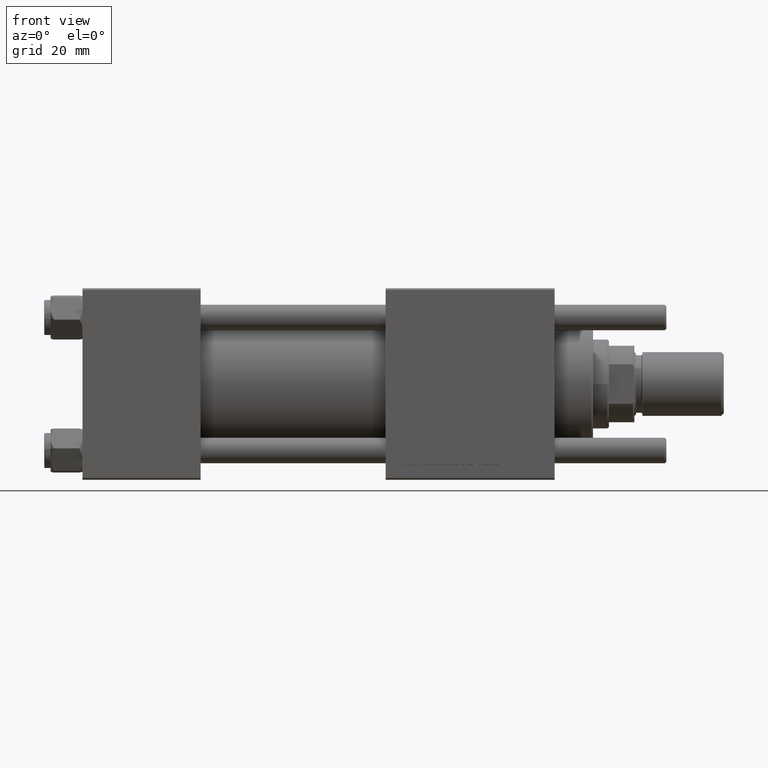
[diagram: clean part render]
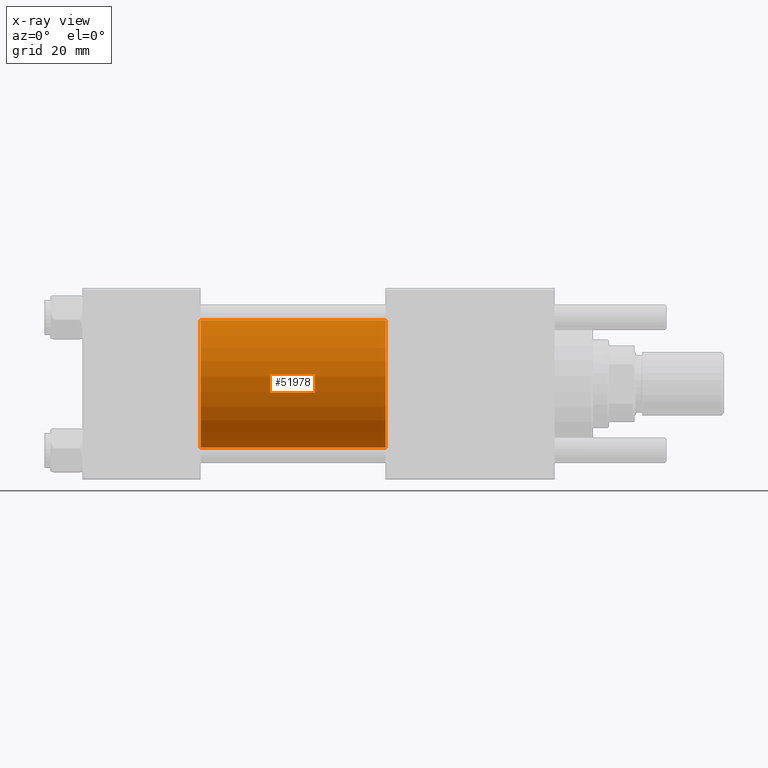
[diagram: x-ray — body ghosted, one internal face saturated and labeled with its STEP entity id]
A machine part, front view, then the same camera in x-ray: the body is ghosted and one INTERNAL B-rep face — a face not visible from any outside direction — is saturated and labeled: STEP entity #51978.
In plain terms, the highlighted cylindrical surface (partial cylindrical patch) has radius 20 mm, axis along (-1, -0, -0).
Its self-contained STEP definition (entity closure, byte-faithful):
#1743 = CARTESIAN_POINT ( 'NONE',  ( 95.00000000000000000, -1.527916156705046464E-16, -20.00000000000000000 ) ) ;
#3789 = DIRECTION ( 'NONE',  ( -1.000000000000000000, -0.000000000000000000, -0.000000000000000000 ) ) ;
#4575 = CARTESIAN_POINT ( 'NONE',  ( 95.00000000000000000, -2.602085213965210642E-15, 20.00000000000000000 ) ) ;
#4624 = ORIENTED_EDGE ( 'NONE', *, *, #45545, .F. ) ;
#4947 = CARTESIAN_POINT ( 'NONE',  ( 37.00000000000000000, -2.602085213965210642E-15, 0.000000000000000000 ) ) ;
#7094 = CYLINDRICAL_SURFACE ( 'NONE', #54515, 20.00000000000000000 ) ;
#9855 = EDGE_CURVE ( 'NONE', #28608, #18003, #35904, .T. ) ;
#10190 = ORIENTED_EDGE ( 'NONE', *, *, #42303, .T. ) ;
#16551 = AXIS2_PLACEMENT_3D ( 'NONE', #4947, #30159, #44623 ) ;
#17631 = VERTEX_POINT ( 'NONE', #4575 ) ;
#18003 = VERTEX_POINT ( 'NONE', #22944 ) ;
#18183 = EDGE_CURVE ( 'NONE', #17631, #27000, #38569, .T. ) ;
#20121 = DIRECTION ( 'NONE',  ( 0.000000000000000000, 0.000000000000000000, 1.000000000000000000 ) ) ;
#22944 = CARTESIAN_POINT ( 'NONE',  ( 37.00000000000000000, -1.527916156705046464E-16, -20.00000000000000000 ) ) ;
#23460 = VECTOR ( 'NONE', #3789, 1000.000000000000000 ) ;
#24756 = CARTESIAN_POINT ( 'NONE',  ( 95.00000000000000000, -2.602085213965210642E-15, 0.000000000000000000 ) ) ;
#26928 = DIRECTION ( 'NONE',  ( -1.000000000000000000, -0.000000000000000000, -0.000000000000000000 ) ) ;
#27000 = VERTEX_POINT ( 'NONE', #39312 ) ;
#28608 = VERTEX_POINT ( 'NONE', #1743 ) ;
#30159 = DIRECTION ( 'NONE',  ( 1.000000000000000000, 0.000000000000000000, 0.000000000000000000 ) ) ;
#33742 = FACE_OUTER_BOUND ( 'NONE', #53204, .T. ) ;
#35904 = LINE ( 'NONE', #49792, #36221 ) ;
#36221 = VECTOR ( 'NONE', #26928, 1000.000000000000000 ) ;
#38569 = LINE ( 'NONE', #56242, #23460 ) ;
#39312 = CARTESIAN_POINT ( 'NONE',  ( 37.00000000000000000, -2.602085213965210642E-15, 20.00000000000000000 ) ) ;
#41534 = CIRCLE ( 'NONE', #16551, 20.00000000000000000 ) ;
#41841 = DIRECTION ( 'NONE',  ( 1.000000000000000000, 0.000000000000000000, 0.000000000000000000 ) ) ;
#42150 = DIRECTION ( 'NONE',  ( -1.000000000000000000, -0.000000000000000000, -0.000000000000000000 ) ) ;
#42303 = EDGE_CURVE ( 'NONE', #17631, #28608, #48891, .T. ) ;
#44623 = DIRECTION ( 'NONE',  ( 0.000000000000000000, 0.000000000000000000, -1.000000000000000000 ) ) ;
#45545 = EDGE_CURVE ( 'NONE', #27000, #18003, #41534, .T. ) ;
#45598 = CARTESIAN_POINT ( 'NONE',  ( 95.00000000000000000, -2.602085213965210642E-15, 0.000000000000000000 ) ) ;
#46042 = ORIENTED_EDGE ( 'NONE', *, *, #18183, .F. ) ;
#46173 = DIRECTION ( 'NONE',  ( 0.000000000000000000, 0.000000000000000000, -1.000000000000000000 ) ) ;
#48891 = CIRCLE ( 'NONE', #53533, 20.00000000000000000 ) ;
#49792 = CARTESIAN_POINT ( 'NONE',  ( 95.00000000000000000, -1.527916156705046464E-16, -20.00000000000000000 ) ) ;
#51978 = ADVANCED_FACE ( 'NONE', ( #33742 ), #7094, .F. ) ;
#53204 = EDGE_LOOP ( 'NONE', ( #10190, #55581, #4624, #46042 ) ) ;
#53533 = AXIS2_PLACEMENT_3D ( 'NONE', #45598, #41841, #46173 ) ;
#54515 = AXIS2_PLACEMENT_3D ( 'NONE', #24756, #42150, #20121 ) ;
#55581 = ORIENTED_EDGE ( 'NONE', *, *, #9855, .T. ) ;
#56242 = CARTESIAN_POINT ( 'NONE',  ( 95.00000000000000000, -2.602085213965210642E-15, 20.00000000000000000 ) ) ;